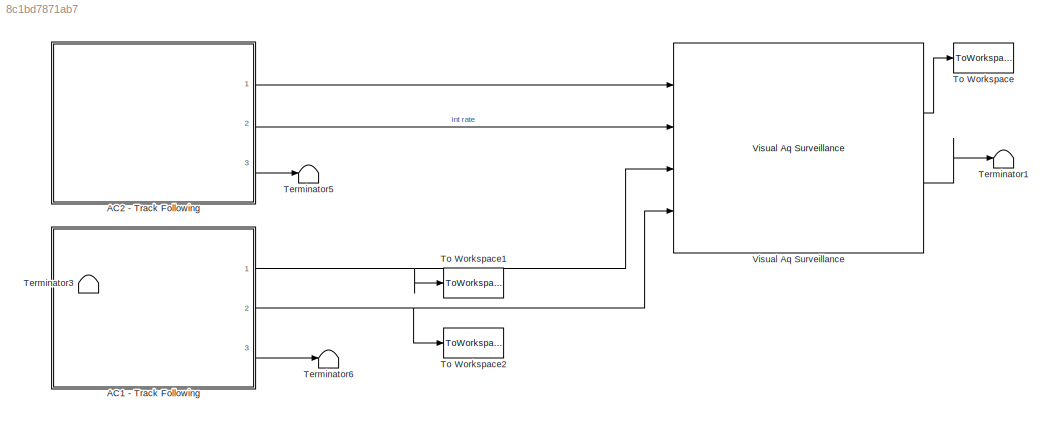
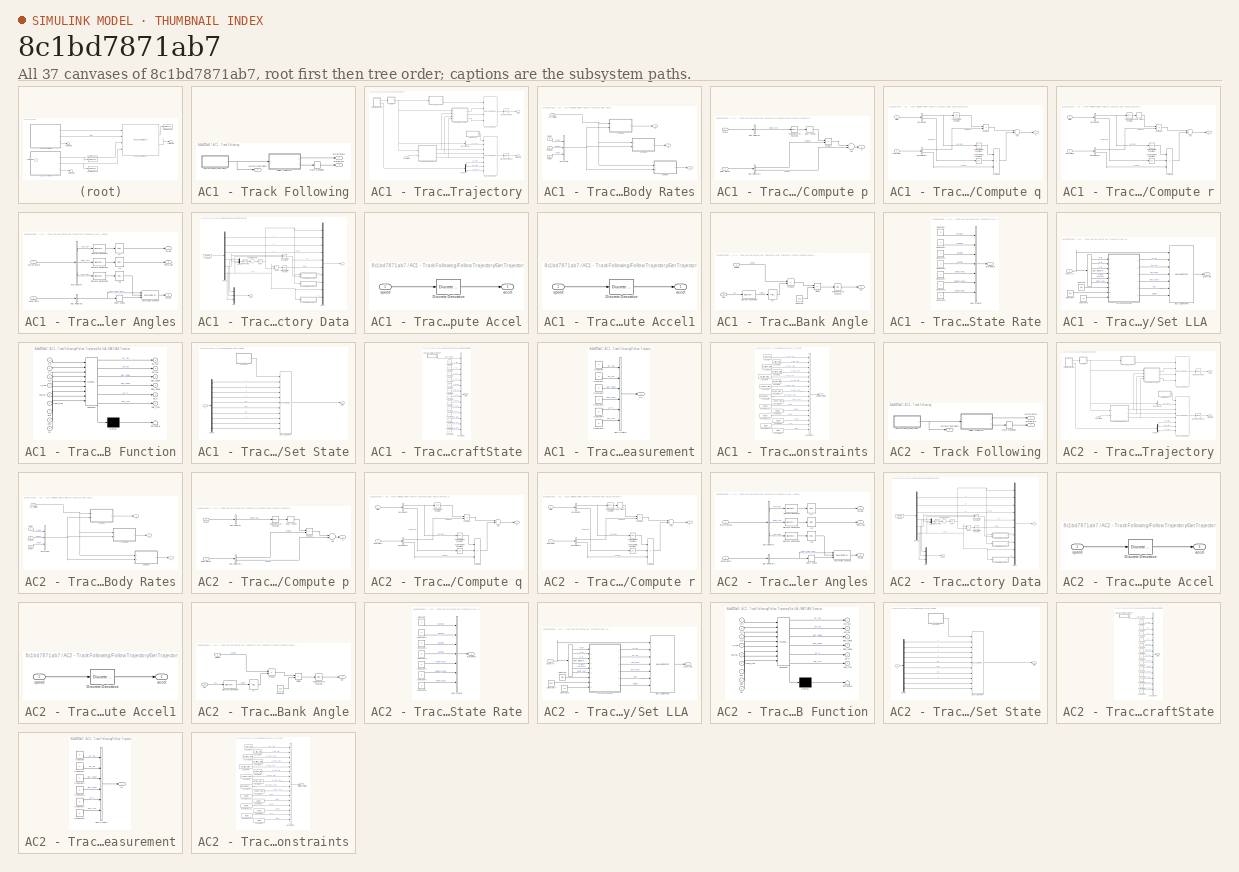
[diagram: thumbnail index - all 37 canvases of the model, root first then tree order]
MODEL slx_8c1bd7871ab7
KIND model
CONFIG AbsTol = auto
CONFIG EnableMultiTasking = off
CONFIG FixedStep = auto
CONFIG MaxStep = auto
CONFIG MinStep = auto
CONFIG RelTol = 1e-3
CONFIG SampleTimeConstraint = Unconstrained
CONFIG Solver = VariableStepAuto
CONFIG SolverName = VariableStepAuto
CONFIG StartTime = 0.0
CONFIG StopTime = 10.0
BLOCK [SubSystem] AC1 - Track Following
  Ports = [0, 3]
  RequestExecContextInheritance = off
BLOCK [Outport] AC1 - Track Following/AircraftConstraints
  IconDisplay = Port number
  OutDataTypeStr = Bus: AircraftConstraints
  Port = 3
  VectorParamsAs1DForOutWhenUnconnected = off
BLOCK [Outport] AC1 - Track Following/AircraftState
  IconDisplay = Port number
  OutDataTypeStr = Bus: AircraftState
  VectorParamsAs1DForOutWhenUnconnected = off
BLOCK [SubSystem] AC1 - Track Following/Follow Trajectory
  Ports = [1, 2]
  RequestExecContextInheritance = off
BLOCK [BusAssignment] AC1 - Track Following/Follow Trajectory/Bus Assignment
  AssignedSignals = p_radps,q_radps,r_radps
  Ports = [4, 1]
BLOCK [BusAssignment] AC1 - Track Following/Follow Trajectory/Bus Assignment1
  AssignedSignals = vdot_fpss,psidot_radps,thetadot_radps,phidot_radps,Ndot_ftps,Edot_ftps,hdot_ftps
  Ports = [8, 1]
BLOCK [BusSelector] AC1 - Track Following/Follow Trajectory/Bus Selector
  OutputAsBus = off
  OutputSignals = dv_ftps2
  Ports = [1, 1]
BLOCK [SubSystem] AC1 - Track Following/Follow Trajectory/Compute Body Rates
  Ports = [4, 3]
  RequestExecContextInheritance = off
BLOCK [Inport] AC1 - Track Following/Follow Trajectory/Compute Body Rates/AircraftState
  IconDisplay = Port number
BLOCK [BusCreator] AC1 - Track Following/Follow Trajectory/Compute Body Rates/Bus Creator
  DisplayOption = bar
  InheritFromInputs = on
  Inputs = 3
  Ports = [3, 1]
BLOCK [SubSystem] AC1 - Track Following/Follow Trajectory/Compute Body Rates/Compute p
  Ports = [2, 1]
  RequestExecContextInheritance = off
BLOCK [Sum] AC1 - Track Following/Follow Trajectory/Compute Body Rates/Compute p/Add
  InputSameDT = off
  OutDataTypeStr = Inherit: Inherit via internal rule
  Ports = [2, 1]
  SaturateOnIntegerOverflow = off
BLOCK [BusSelector] AC1 - Track Following/Follow Trajectory/Compute Body Rates/Compute p/Bus Selector
  OutputAsBus = off
  OutputSignals = theta_rad
  Ports = [1, 1]
BLOCK [BusSelector] AC1 - Track Following/Follow Trajectory/Compute Body Rates/Compute p/Bus Selector1
  OutputAsBus = off
  OutputSignals = psidot,phidot
  Ports = [1, 2]
BLOCK [Inport] AC1 - Track Following/Follow Trajectory/Compute Body Rates/Compute p/Euler Rates
  IconDisplay = Port number
  Port = 2
BLOCK [Product] AC1 - Track Following/Follow Trajectory/Compute Body Rates/Compute p/Product
  InputSameDT = off
  OutDataTypeStr = Inherit: Inherit via internal rule
  Ports = [2, 1]
  RndMeth = Floor
  SaturateOnIntegerOverflow = off
BLOCK [Inport] AC1 - Track Following/Follow Trajectory/Compute Body Rates/Compute p/State
  IconDisplay = Port number
BLOCK [Trigonometry] AC1 - Track Following/Follow Trajectory/Compute Body Rates/Compute p/Trigonometric Function
  Ports = [1, 1]
BLOCK [UnaryMinus] AC1 - Track Following/Follow Trajectory/Compute Body Rates/Compute p/Unary Minus
BLOCK [Outport] AC1 - Track Following/Follow Trajectory/Compute Body Rates/Compute p/p
  IconDisplay = Port number
  VectorParamsAs1DForOutWhenUnconnected = off
BLOCK [SubSystem] AC1 - Track Following/Follow Trajectory/Compute Body Rates/Compute q
  Ports = [2, 1]
  RequestExecContextInheritance = off
BLOCK [Sum] AC1 - Track Following/Follow Trajectory/Compute Body Rates/Compute q/Add
  InputSameDT = off
  OutDataTypeStr = Inherit: Inherit via internal rule
  Ports = [2, 1]
  SaturateOnIntegerOverflow = off
BLOCK [BusSelector] AC1 - Track Following/Follow Trajectory/Compute Body Rates/Compute q/Bus Selector
  OutputAsBus = off
  OutputSignals = phi_rad,theta_rad
  Ports = [1, 2]
BLOCK [BusSelector] AC1 - Track Following/Follow Trajectory/Compute Body Rates/Compute q/Bus Selector1
  OutputAsBus = off
  OutputSignals = thetadot,psidot
  Ports = [1, 2]
BLOCK [Inport] AC1 - Track Following/Follow Trajectory/Compute Body Rates/Compute q/Euler Rates
  IconDisplay = Port number
  Port = 2
BLOCK [Product] AC1 - Track Following/Follow Trajectory/Compute Body Rates/Compute q/Product
  InputSameDT = off
  OutDataTypeStr = Inherit: Inherit via internal rule
  Ports = [2, 1]
  RndMeth = Floor
  SaturateOnIntegerOverflow = off
BLOCK [Product] AC1 - Track Following/Follow Trajectory/Compute Body Rates/Compute q/Product1
  InputSameDT = off
  Inputs = 3
  OutDataTypeStr = Inherit: Inherit via internal rule
  Ports = [3, 1]
  RndMeth = Floor
  SaturateOnIntegerOverflow = off
BLOCK [Inport] AC1 - Track Following/Follow Trajectory/Compute Body Rates/Compute q/State
  IconDisplay = Port number
BLOCK [Trigonometry] AC1 - Track Following/Follow Trajectory/Compute Body Rates/Compute q/Trigonometric Function
  Operator = cos
  Ports = [1, 1]
BLOCK [Trigonometry] AC1 - Track Following/Follow Trajectory/Compute Body Rates/Compute q/Trigonometric Function1
  Operator = cos
  Ports = [1, 1]
BLOCK [Trigonometry] AC1 - Track Following/Follow Trajectory/Compute Body Rates/Compute q/Trigonometric Function2
  Ports = [1, 1]
BLOCK [Outport] AC1 - Track Following/Follow Trajectory/Compute Body Rates/Compute q/q
  IconDisplay = Port number
  VectorParamsAs1DForOutWhenUnconnected = off
BLOCK [SubSystem] AC1 - Track Following/Follow Trajectory/Compute Body Rates/Compute r
  Ports = [2, 1]
  RequestExecContextInheritance = off
BLOCK [Sum] AC1 - Track Following/Follow Trajectory/Compute Body Rates/Compute r/Add
  InputSameDT = off
  OutDataTypeStr = Inherit: Inherit via internal rule
  Ports = [2, 1]
  SaturateOnIntegerOverflow = off
BLOCK [BusSelector] AC1 - Track Following/Follow Trajectory/Compute Body Rates/Compute r/Bus Selector
  OutputAsBus = off
  OutputSignals = phi_rad,theta_rad
  Ports = [1, 2]
BLOCK [BusSelector] AC1 - Track Following/Follow Trajectory/Compute Body Rates/Compute r/Bus Selector1
  OutputAsBus = off
  OutputSignals = thetadot,psidot
  Ports = [1, 2]
BLOCK [Inport] AC1 - Track Following/Follow Trajectory/Compute Body Rates/Compute r/Euler Rates
  IconDisplay = Port number
  Port = 2
BLOCK [Product] AC1 - Track Following/Follow Trajectory/Compute Body Rates/Compute r/Product
  InputSameDT = off
  OutDataTypeStr = Inherit: Inherit via internal rule
  Ports = [2, 1]
  RndMeth = Floor
  SaturateOnIntegerOverflow = off
BLOCK [Product] AC1 - Track Following/Follow Trajectory/Compute Body Rates/Compute r/Product1
  InputSameDT = off
  Inputs = 3
  OutDataTypeStr = Inherit: Inherit via internal rule
  Ports = [3, 1]
  RndMeth = Floor
  SaturateOnIntegerOverflow = off
BLOCK [Inport] AC1 - Track Following/Follow Trajectory/Compute Body Rates/Compute r/State
  IconDisplay = Port number
BLOCK [Trigonometry] AC1 - Track Following/Follow Trajectory/Compute Body Rates/Compute r/Trigonometric Function
  Ports = [1, 1]
BLOCK [Trigonometry] AC1 - Track Following/Follow Trajectory/Compute Body Rates/Compute r/Trigonometric Function1
  Operator = cos
  Ports = [1, 1]
BLOCK [Trigonometry] AC1 - Track Following/Follow Trajectory/Compute Body Rates/Compute r/Trigonometric Function2
  Operator = cos
  Ports = [1, 1]
BLOCK [UnaryMinus] AC1 - Track Following/Follow Trajectory/Compute Body Rates/Compute r/Unary Minus
BLOCK [Outport] AC1 - Track Following/Follow Trajectory/Compute Body Rates/Compute r/r
  IconDisplay = Port number
  VectorParamsAs1DForOutWhenUnconnected = off
BLOCK [Inport] AC1 - Track Following/Follow Trajectory/Compute Body Rates/Phi Dot
  IconDisplay = Port number
  Port = 4
BLOCK [Inport] AC1 - Track Following/Follow Trajectory/Compute Body Rates/Psi Dot
  IconDisplay = Port number
  Port = 2
BLOCK [Inport] AC1 - Track Following/Follow Trajectory/Compute Body Rates/Theta Dot
  IconDisplay = Port number
  Port = 3
BLOCK [Outport] AC1 - Track Following/Follow Trajectory/Compute Body Rates/p
  IconDisplay = Port number
  VectorParamsAs1DForOutWhenUnconnected = off
BLOCK [Outport] AC1 - Track Following/Follow Trajectory/Compute Body Rates/q
  IconDisplay = Port number
  Port = 2
  VectorParamsAs1DForOutWhenUnconnected = off
BLOCK [Outport] AC1 - Track Following/Follow Trajectory/Compute Body Rates/r
  IconDisplay = Port number
  Port = 3
  VectorParamsAs1DForOutWhenUnconnected = off
BLOCK [SubSystem] AC1 - Track Following/Follow Trajectory/Compute Euler Angles
  Ports = [2, 3]
  RequestExecContextInheritance = off
BLOCK [Inport] AC1 - Track Following/Follow Trajectory/Compute Euler Angles/AircraftState
  IconDisplay = Port number
BLOCK [BusSelector] AC1 - Track Following/Follow Trajectory/Compute Euler Angles/Bus Selector
  OutputAsBus = off
  OutputSignals = psi_rad,theta_rad,phi_rad
  Ports = [1, 3]
BLOCK [BusSelector] AC1 - Track Following/Follow Trajectory/Compute Euler Angles/Bus Selector1
  OutputAsBus = off
  OutputSignals = dphi_radps_max
  Ports = [1, 1]
BLOCK [Inport] AC1 - Track Following/Follow Trajectory/Compute Euler Angles/Constraints
  IconDisplay = Port number
  Port = 2
BLOCK [Reference] AC1 - Track Following/Follow Trajectory/Compute Euler Angles/Discrete Derivative  REF=simulink/Discrete/Discrete Derivative
  Ports = [1, 1]
  SourceBlock = simulink/Discrete/Discrete Derivative
  SourceProductBaseCode = SL
  SourceProductName = Simulink
  SourceType = Discrete Derivative
BLOCK [Reference] AC1 - Track Following/Follow Trajectory/Compute Euler Angles/Discrete Derivative1  REF=simulink/Discrete/Discrete Derivative
  Ports = [1, 1]
  SourceBlock = simulink/Discrete/Discrete Derivative
  SourceProductBaseCode = SL
  SourceProductName = Simulink
  SourceType = Discrete Derivative
BLOCK [Reference] AC1 - Track Following/Follow Trajectory/Compute Euler Angles/Discrete Derivative2  REF=simulink/Discrete/Discrete Derivative
  Ports = [1, 1]
  SourceBlock = simulink/Discrete/Discrete Derivative
  SourceProductBaseCode = SL
  SourceProductName = Simulink
  SourceType = Discrete Derivative
BLOCK [InitialCondition] AC1 - Track Following/Follow Trajectory/Compute Euler Angles/IC
  Value = 0
BLOCK [InitialCondition] AC1 - Track Following/Follow Trajectory/Compute Euler Angles/IC1
  Value = 0
BLOCK [InitialCondition] AC1 - Track Following/Follow Trajectory/Compute Euler Angles/IC2
  Value = 0
BLOCK [Outport] AC1 - Track Following/Follow Trajectory/Compute Euler Angles/Phi Dot 
  IconDisplay = Port number
  Port = 3
  VectorParamsAs1DForOutWhenUnconnected = off
BLOCK [Outport] AC1 - Track Following/Follow Trajectory/Compute Euler Angles/Psi Dot
  IconDisplay = Port number
  VectorParamsAs1DForOutWhenUnconnected = off
BLOCK [Reference] AC1 - Track Following/Follow Trajectory/Compute Euler Angles/Saturation Dynamic  REF=simulink/Discontinuities/Saturation
Dynamic
  Ports = [3, 1]
  SourceBlock = simulink/Discontinuities/Saturation\nDynamic
  SourceProductBaseCode = SL
  SourceProductName = Simulink
  SourceType = Saturation Dynamic
BLOCK [Outport] AC1 - Track Following/Follow Trajectory/Compute Euler Angles/Theta Dot
  IconDisplay = Port number
  Port = 2
  VectorParamsAs1DForOutWhenUnconnected = off
BLOCK [UnaryMinus] AC1 - Track Following/Follow Trajectory/Compute Euler Angles/Unary Minus
BLOCK [Inport] AC1 - Track Following/Follow Trajectory/Constraints
  IconDisplay = Port number
BLOCK [Demux] AC1 - Track Following/Follow Trajectory/Demux
  DisplayOption = bar
  Outputs = 3
  Ports = [1, 3]
BLOCK [SubSystem] AC1 - Track Following/Follow Trajectory/Get Trajectory Data
  Ports = [0, 2]
  RequestExecContextInheritance = off
BLOCK [SubSystem] AC1 - Track Following/Follow Trajectory/Get Trajectory Data/Compute Accel
  Ports = [1, 1]
  RequestExecContextInheritance = off
BLOCK [Reference] AC1 - Track Following/Follow Trajectory/Get Trajectory Data/Compute Accel/Discrete Derivative  REF=simulink/Discrete/Discrete Derivative
  Ports = [1, 1]
  SourceBlock = simulink/Discrete/Discrete Derivative
  SourceProductBaseCode = SL
  SourceProductName = Simulink
  SourceType = Discrete Derivative
BLOCK [Outport] AC1 - Track Following/Follow Trajectory/Get Trajectory Data/Compute Accel/accel
  IconDisplay = Port number
  VectorParamsAs1DForOutWhenUnconnected = off
BLOCK [Inport] AC1 - Track Following/Follow Trajectory/Get Trajectory Data/Compute Accel/speed
  IconDisplay = Port number
BLOCK [SubSystem] AC1 - Track Following/Follow Trajectory/Get Trajectory Data/Compute Accel1
  Ports = [1, 1]
  RequestExecContextInheritance = off
BLOCK [Reference] AC1 - Track Following/Follow Trajectory/Get Trajectory Data/Compute Accel1/Discrete Derivative  REF=simulink/Discrete/Discrete Derivative
  Ports = [1, 1]
  SourceBlock = simulink/Discrete/Discrete Derivative
  SourceProductBaseCode = SL
  SourceProductName = Simulink
  SourceType = Discrete Derivative
BLOCK [Outport] AC1 - Track Following/Follow Trajectory/Get Trajectory Data/Compute Accel1/accel
  IconDisplay = Port number
  VectorParamsAs1DForOutWhenUnconnected = off
BLOCK [Inport] AC1 - Track Following/Follow Trajectory/Get Trajectory Data/Compute Accel1/speed
  IconDisplay = Port number
BLOCK [SubSystem] AC1 - Track Following/Follow Trajectory/Get Trajectory Data/Compute Bank Angle
  Ports = [2, 1]
  RequestExecContextInheritance = off
BLOCK [Constant] AC1 - Track Following/Follow Trajectory/Get Trajectory Data/Compute Bank Angle/Constant
  Value = 32.2
BLOCK [Reference] AC1 - Track Following/Follow Trajectory/Get Trajectory Data/Compute Bank Angle/Discrete Derivative  REF=simulink/Discrete/Discrete Derivative
  Ports = [1, 1]
  SourceBlock = simulink/Discrete/Discrete Derivative
  SourceProductBaseCode = SL
  SourceProductName = Simulink
  SourceType = Discrete Derivative
BLOCK [Product] AC1 - Track Following/Follow Trajectory/Get Trajectory Data/Compute Bank Angle/Divide
  InputSameDT = off
  Inputs = */
  OutDataTypeStr = Inherit: Inherit via internal rule
  Ports = [2, 1]
  RndMeth = Floor
  SaturateOnIntegerOverflow = off
BLOCK [InitialCondition] AC1 - Track Following/Follow Trajectory/Get Trajectory Data/Compute Bank Angle/IC
  Value = 0
BLOCK [Product] AC1 - Track Following/Follow Trajectory/Get Trajectory Data/Compute Bank Angle/Product
  InputSameDT = off
  OutDataTypeStr = Inherit: Inherit via internal rule
  Ports = [2, 1]
  RndMeth = Floor
  SaturateOnIntegerOverflow = off
BLOCK [Trigonometry] AC1 - Track Following/Follow Trajectory/Get Trajectory Data/Compute Bank Angle/Trigonometric Function
  Operator = atan
  Ports = [1, 1]
BLOCK [Outport] AC1 - Track Following/Follow Trajectory/Get Trajectory Data/Compute Bank Angle/phi
  IconDisplay = Port number
  VectorParamsAs1DForOutWhenUnconnected = off
BLOCK [Inport] AC1 - Track Following/Follow Trajectory/Get Trajectory Data/Compute Bank Angle/psi
  IconDisplay = Port number
  Port = 2
BLOCK [Inport] AC1 - Track Following/Follow Trajectory/Get Trajectory Data/Compute Bank Angle/speed
  IconDisplay = Port number
BLOCK [Demux] AC1 - Track Following/Follow Trajectory/Get Trajectory Data/Demux
  DisplayOption = bar
  Outputs = 6
  Ports = [1, 6]
BLOCK [Product] AC1 - Track Following/Follow Trajectory/Get Trajectory Data/Divide
  InputSameDT = off
  Inputs = */
  OutDataTypeStr = Inherit: Inherit via internal rule
  Ports = [2, 1]
  RndMeth = Floor
  SaturateOnIntegerOverflow = off
BLOCK [FromFile] AC1 - Track Following/Follow Trajectory/Get Trajectory Data/From File
  FileName = traj1.mat
  SampleTime = 0.1
BLOCK [Math] AC1 - Track Following/Follow Trajectory/Get Trajectory Data/Math Function
  Operator = square
  Ports = [1, 1]
BLOCK [Mux] AC1 - Track Following/Follow Trajectory/Get Trajectory Data/Mux
  DisplayOption = bar
  Inputs = 3
  Ports = [3, 1]
BLOCK [Mux] AC1 - Track Following/Follow Trajectory/Get Trajectory Data/Mux1
  DisplayOption = bar
  Inputs = 10
  Ports = [10, 1]
BLOCK [Mux] AC1 - Track Following/Follow Trajectory/Get Trajectory Data/Mux2
  DisplayOption = bar
  Inputs = 3
  Ports = [3, 1]
BLOCK [Sqrt] AC1 - Track Following/Follow Trajectory/Get Trajectory Data/Sqrt
BLOCK [Sum] AC1 - Track Following/Follow Trajectory/Get Trajectory Data/Sum of Elements
  InputSameDT = off
  Inputs = +
  OutDataTypeStr = Inherit: Inherit via internal rule
  Ports = [1, 1]
  SaturateOnIntegerOverflow = off
BLOCK [Trigonometry] AC1 - Track Following/Follow Trajectory/Get Trajectory Data/Trigonometric Function
  Operator = asin
  Ports = [1, 1]
BLOCK [Trigonometry] AC1 - Track Following/Follow Trajectory/Get Trajectory Data/Trigonometric Function1
  Operator = atan2
  Ports = [2, 1]
BLOCK [Outport] AC1 - Track Following/Follow Trajectory/Get Trajectory Data/x
  IconDisplay = Port number
  VectorParamsAs1DForOutWhenUnconnected = off
BLOCK [Outport] AC1 - Track Following/Follow Trajectory/Get Trajectory Data/xdot
  IconDisplay = Port number
  Port = 2
  VectorParamsAs1DForOutWhenUnconnected = off
BLOCK [SubSystem] AC1 - Track Following/Follow Trajectory/Null State Rate
  Ports = [0, 1]
  RequestExecContextInheritance = off
BLOCK [BusCreator] AC1 - Track Following/Follow Trajectory/Null State Rate/Bus Creator
  DisplayOption = bar
  InheritFromInputs = on
  Inputs = 'vdot_fpss','Ndot_ftps','Edot_ftps','hdot_ftps','psidot_radps','thetadot_radps','phidot_radps'
  OutDataTypeStr = Bus: AircraftStateRate
  Ports = [7, 1]
BLOCK [Constant] AC1 - Track Following/Follow Trajectory/Null State Rate/Constant
  Value = 0
BLOCK [Constant] AC1 - Track Following/Follow Trajectory/Null State Rate/Constant1
  Value = 0
BLOCK [Constant] AC1 - Track Following/Follow Trajectory/Null State Rate/Constant2
  Value = 0
BLOCK [Constant] AC1 - Track Following/Follow Trajectory/Null State Rate/Constant3
  Value = 0
BLOCK [Constant] AC1 - Track Following/Follow Trajectory/Null State Rate/Constant4
  Value = 0
BLOCK [Constant] AC1 - Track Following/Follow Trajectory/Null State Rate/Constant5
  Value = 0
BLOCK [Constant] AC1 - Track Following/Follow Trajectory/Null State Rate/Constant6
  Value = 0
BLOCK [Outport] AC1 - Track Following/Follow Trajectory/Null State Rate/StateRate
  IconDisplay = Port number
  OutDataTypeStr = Bus: AircraftStateRate
  VectorParamsAs1DForOutWhenUnconnected = off
BLOCK [SubSystem] AC1 - Track Following/Follow Trajectory/Set LLA 
  Ports = [1, 1]
  RequestExecContextInheritance = off
BLOCK [BusAssignment] AC1 - Track Following/Follow Trajectory/Set LLA /Bus Assignment
  AssignedSignals = latLonAltState.lat_rad,latLonAltState.lon_rad,latLonAltState.dlat_radps,latLonAltState.dlon_radps,latLonAltState.alt_ft,latLonAltState.dalt_ftps
  Ports = [7, 1]
BLOCK [BusSelector] AC1 - Track Following/Follow Trajectory/Set LLA /Bus Selector
  OutputAsBus = off
  OutputSignals = e_ft,n_ft,h_ft,v_ftps,psi_rad,theta_rad
  Ports = [1, 6]
BLOCK [Constant] AC1 - Track Following/Follow Trajectory/Set LLA /Constant
  Value = lat0
BLOCK [Constant] AC1 - Track Following/Follow Trajectory/Set LLA /Constant7
  Value = lon0
BLOCK [Constant] AC1 - Track Following/Follow Trajectory/Set LLA /Constant8
  Value = h0
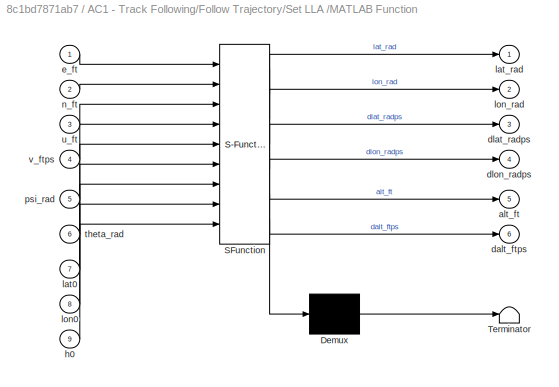
BLOCK [SubSystem] AC1 - Track Following/Follow Trajectory/Set LLA /MATLAB Function
  ErrorFcn = Stateflow.Translate.translate
  PermitHierarchicalResolution = ExplicitOnly
  Ports = [9, 6]
  RequestExecContextInheritance = off
  SFBlockType = MATLAB Function
  TreatAsAtomicUnit = on
BLOCK [Demux] AC1 - Track Following/Follow Trajectory/Set LLA /MATLAB Function/ Demux 
  Outputs = 1
  Ports = [1, 1]
BLOCK [S-Function] AC1 - Track Following/Follow Trajectory/Set LLA /MATLAB Function/ SFunction 
  EnableBusSupport = off
  FunctionName = sf_sfun
  PortCounts = [9 7]
  Ports = [9, 7]
  SFcnIsStateOwnerBlock = off
  SFunctionDeploymentMode = off
  Tag = Stateflow S-Function 3
BLOCK [Terminator] AC1 - Track Following/Follow Trajectory/Set LLA /MATLAB Function/ Terminator 
BLOCK [Outport] AC1 - Track Following/Follow Trajectory/Set LLA /MATLAB Function/alt_ft
  IconDisplay = Port number
  Port = 5
  VectorParamsAs1DForOutWhenUnconnected = off
BLOCK [Outport] AC1 - Track Following/Follow Trajectory/Set LLA /MATLAB Function/dalt_ftps
  IconDisplay = Port number
  Port = 6
  VectorParamsAs1DForOutWhenUnconnected = off
BLOCK [Outport] AC1 - Track Following/Follow Trajectory/Set LLA /MATLAB Function/dlat_radps
  IconDisplay = Port number
  Port = 3
  VectorParamsAs1DForOutWhenUnconnected = off
BLOCK [Outport] AC1 - Track Following/Follow Trajectory/Set LLA /MATLAB Function/dlon_radps
  IconDisplay = Port number
  Port = 4
  VectorParamsAs1DForOutWhenUnconnected = off
BLOCK [Inport] AC1 - Track Following/Follow Trajectory/Set LLA /MATLAB Function/e_ft
  IconDisplay = Port number
BLOCK [Inport] AC1 - Track Following/Follow Trajectory/Set LLA /MATLAB Function/h0
  IconDisplay = Port number
  Port = 9
BLOCK [Inport] AC1 - Track Following/Follow Trajectory/Set LLA /MATLAB Function/lat0
  IconDisplay = Port number
  Port = 7
BLOCK [Outport] AC1 - Track Following/Follow Trajectory/Set LLA /MATLAB Function/lat_rad
  IconDisplay = Port number
  VectorParamsAs1DForOutWhenUnconnected = off
BLOCK [Inport] AC1 - Track Following/Follow Trajectory/Set LLA /MATLAB Function/lon0
  IconDisplay = Port number
  Port = 8
BLOCK [Outport] AC1 - Track Following/Follow Trajectory/Set LLA /MATLAB Function/lon_rad
  IconDisplay = Port number
  Port = 2
  VectorParamsAs1DForOutWhenUnconnected = off
BLOCK [Inport] AC1 - Track Following/Follow Trajectory/Set LLA /MATLAB Function/n_ft
  IconDisplay = Port number
  Port = 2
BLOCK [Inport] AC1 - Track Following/Follow Trajectory/Set LLA /MATLAB Function/psi_rad
  IconDisplay = Port number
  Port = 5
BLOCK [Inport] AC1 - Track Following/Follow Trajectory/Set LLA /MATLAB Function/theta_rad
  IconDisplay = Port number
  Port = 6
BLOCK [Inport] AC1 - Track Following/Follow Trajectory/Set LLA /MATLAB Function/u_ft
  IconDisplay = Port number
  Port = 3
BLOCK [Inport] AC1 - Track Following/Follow Trajectory/Set LLA /MATLAB Function/v_ftps
  IconDisplay = Port number
  Port = 4
BLOCK [Inport] AC1 - Track Following/Follow Trajectory/Set LLA /State In
  IconDisplay = Port number
BLOCK [Outport] AC1 - Track Following/Follow Trajectory/Set LLA /State Out
  IconDisplay = Port number
  VectorParamsAs1DForOutWhenUnconnected = off
BLOCK [SubSystem] AC1 - Track Following/Follow Trajectory/Set State
  Ports = [1, 1]
  RequestExecContextInheritance = off
BLOCK [BusAssignment] AC1 - Track Following/Follow Trajectory/Set State/Bus Assignment
  AssignedSignals = v_ftps,n_ft,e_ft,h_ft,psi_rad,theta_rad,phi_rad,dv_ftps2,dh_ftps,ddh_ftps2
  Ports = [11, 1]
BLOCK [Demux] AC1 - Track Following/Follow Trajectory/Set State/Demux
  DisplayOption = bar
  Outputs = 10
  Ports = [1, 10]
BLOCK [SubSystem] AC1 - Track Following/Follow Trajectory/Set State/Null AircraftState
  Ports = [0, 1]
  RequestExecContextInheritance = off
BLOCK [BusCreator] AC1 - Track Following/Follow Trajectory/Set State/Null AircraftState/Bus Creator
  DisplayOption = bar
  InheritFromInputs = on
  Inputs = 'latLonAltState','v_ftps','n_ft','e_ft','h_ft','psi_rad','theta_rad','phi_rad','p_radps','q_radps','r_radps','dv_ftps2','dh_ftps','ddh_ftps2'
  OutDataTypeStr = Bus: AircraftState
  Ports = [14, 1]
BLOCK [Constant] AC1 - Track Following/Follow Trajectory/Set State/Null AircraftState/Constant
  Value = 0
BLOCK [Constant] AC1 - Track Following/Follow Trajectory/Set State/Null AircraftState/Constant1
  Value = 0
BLOCK [Constant] AC1 - Track Following/Follow Trajectory/Set State/Null AircraftState/Constant10
  Value = 0
BLOCK [Constant] AC1 - Track Following/Follow Trajectory/Set State/Null AircraftState/Constant11
  Value = 0
BLOCK [Constant] AC1 - Track Following/Follow Trajectory/Set State/Null AircraftState/Constant12
  Value = 0
BLOCK [Constant] AC1 - Track Following/Follow Trajectory/Set State/Null AircraftState/Constant2
  Value = 0
BLOCK [Constant] AC1 - Track Following/Follow Trajectory/Set State/Null AircraftState/Constant3
  Value = 0
BLOCK [Constant] AC1 - Track Following/Follow Trajectory/Set State/Null AircraftState/Constant4
  Value = 0
BLOCK [Constant] AC1 - Track Following/Follow Trajectory/Set State/Null AircraftState/Constant5
  Value = 0
BLOCK [Constant] AC1 - Track Following/Follow Trajectory/Set State/Null AircraftState/Constant6
  Value = 0
BLOCK [Constant] AC1 - Track Following/Follow Trajectory/Set State/Null AircraftState/Constant7
  Value = 0
BLOCK [Constant] AC1 - Track Following/Follow Trajectory/Set State/Null AircraftState/Constant8
  Value = 0
BLOCK [Constant] AC1 - Track Following/Follow Trajectory/Set State/Null AircraftState/Constant9
  Value = 0
BLOCK [SubSystem] AC1 - Track Following/Follow Trajectory/Set State/Null AircraftState/Null LatLonAltMeasurement
  Ports = [0, 1]
  RequestExecContextInheritance = off
BLOCK [BusCreator] AC1 - Track Following/Follow Trajectory/Set State/Null AircraftState/Null LatLonAltMeasurement/Bus Creator
  DisplayOption = bar
  InheritFromInputs = on
  Inputs = 'lat_rad','lon_rad','dlat_radps','dlon_radps','alt_ft','dalt_ftps'
  OutDataTypeStr = Bus: LatLonAltMeasurement
  Ports = [6, 1]
BLOCK [Constant] AC1 - Track Following/Follow Trajectory/Set State/Null AircraftState/Null LatLonAltMeasurement/Constant
  Value = 0
BLOCK [Constant] AC1 - Track Following/Follow Trajectory/Set State/Null AircraftState/Null LatLonAltMeasurement/Constant1
  Value = 0
BLOCK [Constant] AC1 - Track Following/Follow Trajectory/Set State/Null AircraftState/Null LatLonAltMeasurement/Constant2
  Value = 0
BLOCK [Constant] AC1 - Track Following/Follow Trajectory/Set State/Null AircraftState/Null LatLonAltMeasurement/Constant3
  Value = 0
BLOCK [Constant] AC1 - Track Following/Follow Trajectory/Set State/Null AircraftState/Null LatLonAltMeasurement/Constant4
  Value = 0
BLOCK [Constant] AC1 - Track Following/Follow Trajectory/Set State/Null AircraftState/Null LatLonAltMeasurement/Constant5
  Value = 0
BLOCK [Outport] AC1 - Track Following/Follow Trajectory/Set State/Null AircraftState/Null LatLonAltMeasurement/LLA
  IconDisplay = Port number
  VectorParamsAs1DForOutWhenUnconnected = off
BLOCK [Outport] AC1 - Track Following/Follow Trajectory/Set State/Null AircraftState/State
  IconDisplay = Port number
  VectorParamsAs1DForOutWhenUnconnected = off
BLOCK [Outport] AC1 - Track Following/Follow Trajectory/Set State/State
  IconDisplay = Port number
  VectorParamsAs1DForOutWhenUnconnected = off
BLOCK [Inport] AC1 - Track Following/Follow Trajectory/Set State/x
  IconDisplay = Port number
BLOCK [SignalConversion] AC1 - Track Following/Follow Trajectory/Signal Conversion
  OverrideOpt = off
BLOCK [SignalConversion] AC1 - Track Following/Follow Trajectory/Signal Conversion1
  OverrideOpt = off
BLOCK [Outport] AC1 - Track Following/Follow Trajectory/State
  IconDisplay = Port number
  VectorParamsAs1DForOutWhenUnconnected = off
BLOCK [Outport] AC1 - Track Following/Follow Trajectory/State Rate
  IconDisplay = Port number
  Port = 2
  VectorParamsAs1DForOutWhenUnconnected = off
BLOCK [SubSystem] AC1 - Track Following/Performance_constraints
  Ports = [0, 1]
  RequestExecContextInheritance = off
BLOCK [Outport] AC1 - Track Following/Performance_constraints/AircraftConstraints
  IconDisplay = Port number
  OutDataTypeStr = Bus: AircraftConstraints
  VectorParamsAs1DForOutWhenUnconnected = off
BLOCK [BusCreator] AC1 - Track Following/Performance_constraints/Bus Creator
  DisplayOption = bar
  InheritFromInputs = on
  Inputs = 16
  Ports = [16, 1]
BLOCK [Constant] AC1 - Track Following/Performance_constraints/Constant
  Value = v_ftps_max
BLOCK [Constant] AC1 - Track Following/Performance_constraints/Constant1
  Value = v_ftps_min
BLOCK [Constant] AC1 - Track Following/Performance_constraints/Constant10 2x1
  Value = pNUM
BLOCK [Constant] AC1 - Track Following/Performance_constraints/Constant11
  Value = pDEN
BLOCK [Constant] AC1 - Track Following/Performance_constraints/Constant12 2x1
  Value = hNUM
BLOCK [Constant] AC1 - Track Following/Performance_constraints/Constant13
  Value = hDEN
BLOCK [Constant] AC1 - Track Following/Performance_constraints/Constant14 2x1
  Value = rNUM
BLOCK [Constant] AC1 - Track Following/Performance_constraints/Constant15
  Value = rDEN
BLOCK [Constant] AC1 - Track Following/Performance_constraints/Constant2
  Value = dv_ftpss_max
BLOCK [Constant] AC1 - Track Following/Performance_constraints/Constant3
  Value = dv_ftpss_min
BLOCK [Constant] AC1 - Track Following/Performance_constraints/Constant4
  Value = dh_ftps_max
BLOCK [Constant] AC1 - Track Following/Performance_constraints/Constant5
  Value = dh_ftps_min
BLOCK [Constant] AC1 - Track Following/Performance_constraints/Constant6
  Value = q_radps_max
BLOCK [Constant] AC1 - Track Following/Performance_constraints/Constant7
  Value = phi_rad_max
BLOCK [Constant] AC1 - Track Following/Performance_constraints/Constant8
  Value = dphi_radps_max
BLOCK [Constant] AC1 - Track Following/Performance_constraints/Constant9
  Value = r_radps_max
BLOCK [RateTransition] AC1 - Track Following/Rate Transition
  OutPortSampleTime = 0.1
BLOCK [Outport] AC1 - Track Following/StateRate
  IconDisplay = Port number
  OutDataTypeStr = Bus: AircraftStateRate
  Port = 2
  VectorParamsAs1DForOutWhenUnconnected = off
BLOCK [SubSystem] AC2 - Track Following
  Ports = [0, 3]
  RequestExecContextInheritance = off
BLOCK [Outport] AC2 - Track Following/AircraftConstraints
  IconDisplay = Port number
  OutDataTypeStr = Bus: AircraftConstraints
  Port = 3
  VectorParamsAs1DForOutWhenUnconnected = off
BLOCK [Outport] AC2 - Track Following/AircraftState
  IconDisplay = Port number
  OutDataTypeStr = Bus: AircraftState
  VectorParamsAs1DForOutWhenUnconnected = off
BLOCK [SubSystem] AC2 - Track Following/Follow Trajectory
  Ports = [1, 2]
  RequestExecContextInheritance = off
BLOCK [BusAssignment] AC2 - Track Following/Follow Trajectory/Bus Assignment
  AssignedSignals = p_radps,q_radps,r_radps
  Ports = [4, 1]
BLOCK [BusAssignment] AC2 - Track Following/Follow Trajectory/Bus Assignment1
  AssignedSignals = vdot_fpss,psidot_radps,thetadot_radps,phidot_radps,Ndot_ftps,Edot_ftps,hdot_ftps
  Ports = [8, 1]
BLOCK [BusSelector] AC2 - Track Following/Follow Trajectory/Bus Selector
  OutputAsBus = off
  OutputSignals = dv_ftps2
  Ports = [1, 1]
BLOCK [SubSystem] AC2 - Track Following/Follow Trajectory/Compute Body Rates
  Ports = [4, 3]
  RequestExecContextInheritance = off
BLOCK [Inport] AC2 - Track Following/Follow Trajectory/Compute Body Rates/AircraftState
  IconDisplay = Port number
BLOCK [BusCreator] AC2 - Track Following/Follow Trajectory/Compute Body Rates/Bus Creator
  DisplayOption = bar
  InheritFromInputs = on
  Inputs = 3
  Ports = [3, 1]
BLOCK [SubSystem] AC2 - Track Following/Follow Trajectory/Compute Body Rates/Compute p
  Ports = [2, 1]
  RequestExecContextInheritance = off
BLOCK [Sum] AC2 - Track Following/Follow Trajectory/Compute Body Rates/Compute p/Add
  InputSameDT = off
  OutDataTypeStr = Inherit: Inherit via internal rule
  Ports = [2, 1]
  SaturateOnIntegerOverflow = off
BLOCK [BusSelector] AC2 - Track Following/Follow Trajectory/Compute Body Rates/Compute p/Bus Selector
  OutputAsBus = off
  OutputSignals = theta_rad
  Ports = [1, 1]
BLOCK [BusSelector] AC2 - Track Following/Follow Trajectory/Compute Body Rates/Compute p/Bus Selector1
  OutputAsBus = off
  OutputSignals = psidot,phidot
  Ports = [1, 2]
BLOCK [Inport] AC2 - Track Following/Follow Trajectory/Compute Body Rates/Compute p/Euler Rates
  IconDisplay = Port number
  Port = 2
BLOCK [Product] AC2 - Track Following/Follow Trajectory/Compute Body Rates/Compute p/Product
  InputSameDT = off
  OutDataTypeStr = Inherit: Inherit via internal rule
  Ports = [2, 1]
  RndMeth = Floor
  SaturateOnIntegerOverflow = off
BLOCK [Inport] AC2 - Track Following/Follow Trajectory/Compute Body Rates/Compute p/State
  IconDisplay = Port number
BLOCK [Trigonometry] AC2 - Track Following/Follow Trajectory/Compute Body Rates/Compute p/Trigonometric Function
  Ports = [1, 1]
BLOCK [UnaryMinus] AC2 - Track Following/Follow Trajectory/Compute Body Rates/Compute p/Unary Minus
BLOCK [Outport] AC2 - Track Following/Follow Trajectory/Compute Body Rates/Compute p/p
  IconDisplay = Port number
  VectorParamsAs1DForOutWhenUnconnected = off
BLOCK [SubSystem] AC2 - Track Following/Follow Trajectory/Compute Body Rates/Compute q
  Ports = [2, 1]
  RequestExecContextInheritance = off
BLOCK [Sum] AC2 - Track Following/Follow Trajectory/Compute Body Rates/Compute q/Add
  InputSameDT = off
  OutDataTypeStr = Inherit: Inherit via internal rule
  Ports = [2, 1]
  SaturateOnIntegerOverflow = off
BLOCK [BusSelector] AC2 - Track Following/Follow Trajectory/Compute Body Rates/Compute q/Bus Selector
  OutputAsBus = off
  OutputSignals = phi_rad,theta_rad
  Ports = [1, 2]
BLOCK [BusSelector] AC2 - Track Following/Follow Trajectory/Compute Body Rates/Compute q/Bus Selector1
  OutputAsBus = off
  OutputSignals = thetadot,psidot
  Ports = [1, 2]
BLOCK [Inport] AC2 - Track Following/Follow Trajectory/Compute Body Rates/Compute q/Euler Rates
  IconDisplay = Port number
  Port = 2
BLOCK [Product] AC2 - Track Following/Follow Trajectory/Compute Body Rates/Compute q/Product
  InputSameDT = off
  OutDataTypeStr = Inherit: Inherit via internal rule
  Ports = [2, 1]
  RndMeth = Floor
  SaturateOnIntegerOverflow = off
BLOCK [Product] AC2 - Track Following/Follow Trajectory/Compute Body Rates/Compute q/Product1
  InputSameDT = off
  Inputs = 3
  OutDataTypeStr = Inherit: Inherit via internal rule
  Ports = [3, 1]
  RndMeth = Floor
  SaturateOnIntegerOverflow = off
BLOCK [Inport] AC2 - Track Following/Follow Trajectory/Compute Body Rates/Compute q/State
  IconDisplay = Port number
BLOCK [Trigonometry] AC2 - Track Following/Follow Trajectory/Compute Body Rates/Compute q/Trigonometric Function
  Operator = cos
  Ports = [1, 1]
BLOCK [Trigonometry] AC2 - Track Following/Follow Trajectory/Compute Body Rates/Compute q/Trigonometric Function1
  Operator = cos
  Ports = [1, 1]
BLOCK [Trigonometry] AC2 - Track Following/Follow Trajectory/Compute Body Rates/Compute q/Trigonometric Function2
  Ports = [1, 1]
BLOCK [Outport] AC2 - Track Following/Follow Trajectory/Compute Body Rates/Compute q/q
  IconDisplay = Port number
  VectorParamsAs1DForOutWhenUnconnected = off
BLOCK [SubSystem] AC2 - Track Following/Follow Trajectory/Compute Body Rates/Compute r
  Ports = [2, 1]
  RequestExecContextInheritance = off
BLOCK [Sum] AC2 - Track Following/Follow Trajectory/Compute Body Rates/Compute r/Add
  InputSameDT = off
  OutDataTypeStr = Inherit: Inherit via internal rule
  Ports = [2, 1]
  SaturateOnIntegerOverflow = off
BLOCK [BusSelector] AC2 - Track Following/Follow Trajectory/Compute Body Rates/Compute r/Bus Selector
  OutputAsBus = off
  OutputSignals = phi_rad,theta_rad
  Ports = [1, 2]
BLOCK [BusSelector] AC2 - Track Following/Follow Trajectory/Compute Body Rates/Compute r/Bus Selector1
  OutputAsBus = off
  OutputSignals = thetadot,psidot
  Ports = [1, 2]
BLOCK [Inport] AC2 - Track Following/Follow Trajectory/Compute Body Rates/Compute r/Euler Rates
  IconDisplay = Port number
  Port = 2
BLOCK [Product] AC2 - Track Following/Follow Trajectory/Compute Body Rates/Compute r/Product
  InputSameDT = off
  OutDataTypeStr = Inherit: Inherit via internal rule
  Ports = [2, 1]
  RndMeth = Floor
  SaturateOnIntegerOverflow = off
BLOCK [Product] AC2 - Track Following/Follow Trajectory/Compute Body Rates/Compute r/Product1
  InputSameDT = off
  Inputs = 3
  OutDataTypeStr = Inherit: Inherit via internal rule
  Ports = [3, 1]
  RndMeth = Floor
  SaturateOnIntegerOverflow = off
BLOCK [Inport] AC2 - Track Following/Follow Trajectory/Compute Body Rates/Compute r/State
  IconDisplay = Port number
BLOCK [Trigonometry] AC2 - Track Following/Follow Trajectory/Compute Body Rates/Compute r/Trigonometric Function
  Ports = [1, 1]
BLOCK [Trigonometry] AC2 - Track Following/Follow Trajectory/Compute Body Rates/Compute r/Trigonometric Function1
  Operator = cos
  Ports = [1, 1]
BLOCK [Trigonometry] AC2 - Track Following/Follow Trajectory/Compute Body Rates/Compute r/Trigonometric Function2
  Operator = cos
  Ports = [1, 1]
BLOCK [UnaryMinus] AC2 - Track Following/Follow Trajectory/Compute Body Rates/Compute r/Unary Minus
BLOCK [Outport] AC2 - Track Following/Follow Trajectory/Compute Body Rates/Compute r/r
  IconDisplay = Port number
  VectorParamsAs1DForOutWhenUnconnected = off
BLOCK [Inport] AC2 - Track Following/Follow Trajectory/Compute Body Rates/Phi Dot
  IconDisplay = Port number
  Port = 4
BLOCK [Inport] AC2 - Track Following/Follow Trajectory/Compute Body Rates/Psi Dot
  IconDisplay = Port number
  Port = 2
BLOCK [Inport] AC2 - Track Following/Follow Trajectory/Compute Body Rates/Theta Dot
  IconDisplay = Port number
  Port = 3
BLOCK [Outport] AC2 - Track Following/Follow Trajectory/Compute Body Rates/p
  IconDisplay = Port number
  VectorParamsAs1DForOutWhenUnconnected = off
BLOCK [Outport] AC2 - Track Following/Follow Trajectory/Compute Body Rates/q
  IconDisplay = Port number
  Port = 2
  VectorParamsAs1DForOutWhenUnconnected = off
BLOCK [Outport] AC2 - Track Following/Follow Trajectory/Compute Body Rates/r
  IconDisplay = Port number
  Port = 3
  VectorParamsAs1DForOutWhenUnconnected = off
BLOCK [SubSystem] AC2 - Track Following/Follow Trajectory/Compute Euler Angles
  Ports = [2, 3]
  RequestExecContextInheritance = off
BLOCK [Inport] AC2 - Track Following/Follow Trajectory/Compute Euler Angles/AircraftState
  IconDisplay = Port number
BLOCK [BusSelector] AC2 - Track Following/Follow Trajectory/Compute Euler Angles/Bus Selector
  OutputAsBus = off
  OutputSignals = psi_rad,theta_rad,phi_rad
  Ports = [1, 3]
BLOCK [BusSelector] AC2 - Track Following/Follow Trajectory/Compute Euler Angles/Bus Selector1
  OutputAsBus = off
  OutputSignals = dphi_radps_max
  Ports = [1, 1]
BLOCK [Inport] AC2 - Track Following/Follow Trajectory/Compute Euler Angles/Constraints
  IconDisplay = Port number
  Port = 2
BLOCK [Reference] AC2 - Track Following/Follow Trajectory/Compute Euler Angles/Discrete Derivative  REF=simulink/Discrete/Discrete Derivative
  Ports = [1, 1]
  SourceBlock = simulink/Discrete/Discrete Derivative
  SourceProductBaseCode = SL
  SourceProductName = Simulink
  SourceType = Discrete Derivative
BLOCK [Reference] AC2 - Track Following/Follow Trajectory/Compute Euler Angles/Discrete Derivative1  REF=simulink/Discrete/Discrete Derivative
  Ports = [1, 1]
  SourceBlock = simulink/Discrete/Discrete Derivative
  SourceProductBaseCode = SL
  SourceProductName = Simulink
  SourceType = Discrete Derivative
BLOCK [Reference] AC2 - Track Following/Follow Trajectory/Compute Euler Angles/Discrete Derivative2  REF=simulink/Discrete/Discrete Derivative
  Ports = [1, 1]
  SourceBlock = simulink/Discrete/Discrete Derivative
  SourceProductBaseCode = SL
  SourceProductName = Simulink
  SourceType = Discrete Derivative
BLOCK [InitialCondition] AC2 - Track Following/Follow Trajectory/Compute Euler Angles/IC
  Value = 0
BLOCK [InitialCondition] AC2 - Track Following/Follow Trajectory/Compute Euler Angles/IC1
  Value = 0
BLOCK [InitialCondition] AC2 - Track Following/Follow Trajectory/Compute Euler Angles/IC2
  Value = 0
BLOCK [Outport] AC2 - Track Following/Follow Trajectory/Compute Euler Angles/Phi Dot 
  IconDisplay = Port number
  Port = 3
  VectorParamsAs1DForOutWhenUnconnected = off
BLOCK [Outport] AC2 - Track Following/Follow Trajectory/Compute Euler Angles/Psi Dot
  IconDisplay = Port number
  VectorParamsAs1DForOutWhenUnconnected = off
BLOCK [Reference] AC2 - Track Following/Follow Trajectory/Compute Euler Angles/Saturation Dynamic  REF=simulink/Discontinuities/Saturation
Dynamic
  Ports = [3, 1]
  SourceBlock = simulink/Discontinuities/Saturation\nDynamic
  SourceProductBaseCode = SL
  SourceProductName = Simulink
  SourceType = Saturation Dynamic
BLOCK [Outport] AC2 - Track Following/Follow Trajectory/Compute Euler Angles/Theta Dot
  IconDisplay = Port number
  Port = 2
  VectorParamsAs1DForOutWhenUnconnected = off
BLOCK [UnaryMinus] AC2 - Track Following/Follow Trajectory/Compute Euler Angles/Unary Minus
BLOCK [Inport] AC2 - Track Following/Follow Trajectory/Constraints
  IconDisplay = Port number
BLOCK [Demux] AC2 - Track Following/Follow Trajectory/Demux
  DisplayOption = bar
  Outputs = 3
  Ports = [1, 3]
BLOCK [SubSystem] AC2 - Track Following/Follow Trajectory/Get Trajectory Data
  Ports = [0, 2]
  RequestExecContextInheritance = off
BLOCK [SubSystem] AC2 - Track Following/Follow Trajectory/Get Trajectory Data/Compute Accel
  Ports = [1, 1]
  RequestExecContextInheritance = off
BLOCK [Reference] AC2 - Track Following/Follow Trajectory/Get Trajectory Data/Compute Accel/Discrete Derivative  REF=simulink/Discrete/Discrete Derivative
  Ports = [1, 1]
  SourceBlock = simulink/Discrete/Discrete Derivative
  SourceProductBaseCode = SL
  SourceProductName = Simulink
  SourceType = Discrete Derivative
BLOCK [Outport] AC2 - Track Following/Follow Trajectory/Get Trajectory Data/Compute Accel/accel
  IconDisplay = Port number
  VectorParamsAs1DForOutWhenUnconnected = off
BLOCK [Inport] AC2 - Track Following/Follow Trajectory/Get Trajectory Data/Compute Accel/speed
  IconDisplay = Port number
BLOCK [SubSystem] AC2 - Track Following/Follow Trajectory/Get Trajectory Data/Compute Accel1
  Ports = [1, 1]
  RequestExecContextInheritance = off
BLOCK [Reference] AC2 - Track Following/Follow Trajectory/Get Trajectory Data/Compute Accel1/Discrete Derivative  REF=simulink/Discrete/Discrete Derivative
  Ports = [1, 1]
  SourceBlock = simulink/Discrete/Discrete Derivative
  SourceProductBaseCode = SL
  SourceProductName = Simulink
  SourceType = Discrete Derivative
BLOCK [Outport] AC2 - Track Following/Follow Trajectory/Get Trajectory Data/Compute Accel1/accel
  IconDisplay = Port number
  VectorParamsAs1DForOutWhenUnconnected = off
BLOCK [Inport] AC2 - Track Following/Follow Trajectory/Get Trajectory Data/Compute Accel1/speed
  IconDisplay = Port number
BLOCK [SubSystem] AC2 - Track Following/Follow Trajectory/Get Trajectory Data/Compute Bank Angle
  Ports = [2, 1]
  RequestExecContextInheritance = off
BLOCK [Constant] AC2 - Track Following/Follow Trajectory/Get Trajectory Data/Compute Bank Angle/Constant
  Value = 32.2
BLOCK [Reference] AC2 - Track Following/Follow Trajectory/Get Trajectory Data/Compute Bank Angle/Discrete Derivative  REF=simulink/Discrete/Discrete Derivative
  Ports = [1, 1]
  SourceBlock = simulink/Discrete/Discrete Derivative
  SourceProductBaseCode = SL
  SourceProductName = Simulink
  SourceType = Discrete Derivative
BLOCK [Product] AC2 - Track Following/Follow Trajectory/Get Trajectory Data/Compute Bank Angle/Divide
  InputSameDT = off
  Inputs = */
  OutDataTypeStr = Inherit: Inherit via internal rule
  Ports = [2, 1]
  RndMeth = Floor
  SaturateOnIntegerOverflow = off
BLOCK [InitialCondition] AC2 - Track Following/Follow Trajectory/Get Trajectory Data/Compute Bank Angle/IC
  Value = 0
BLOCK [Product] AC2 - Track Following/Follow Trajectory/Get Trajectory Data/Compute Bank Angle/Product
  InputSameDT = off
  OutDataTypeStr = Inherit: Inherit via internal rule
  Ports = [2, 1]
  RndMeth = Floor
  SaturateOnIntegerOverflow = off
BLOCK [Trigonometry] AC2 - Track Following/Follow Trajectory/Get Trajectory Data/Compute Bank Angle/Trigonometric Function
  Operator = atan
  Ports = [1, 1]
BLOCK [Outport] AC2 - Track Following/Follow Trajectory/Get Trajectory Data/Compute Bank Angle/phi
  IconDisplay = Port number
  VectorParamsAs1DForOutWhenUnconnected = off
BLOCK [Inport] AC2 - Track Following/Follow Trajectory/Get Trajectory Data/Compute Bank Angle/psi
  IconDisplay = Port number
  Port = 2
BLOCK [Inport] AC2 - Track Following/Follow Trajectory/Get Trajectory Data/Compute Bank Angle/speed
  IconDisplay = Port number
BLOCK [Demux] AC2 - Track Following/Follow Trajectory/Get Trajectory Data/Demux
  DisplayOption = bar
  Outputs = 6
  Ports = [1, 6]
BLOCK [Product] AC2 - Track Following/Follow Trajectory/Get Trajectory Data/Divide
  InputSameDT = off
  Inputs = */
  OutDataTypeStr = Inherit: Inherit via internal rule
  Ports = [2, 1]
  RndMeth = Floor
  SaturateOnIntegerOverflow = off
BLOCK [FromFile] AC2 - Track Following/Follow Trajectory/Get Trajectory Data/From File
  FileName = traj2.mat
  SampleTime = 0.1
BLOCK [Math] AC2 - Track Following/Follow Trajectory/Get Trajectory Data/Math Function
  Operator = square
  Ports = [1, 1]
BLOCK [Mux] AC2 - Track Following/Follow Trajectory/Get Trajectory Data/Mux
  DisplayOption = bar
  Inputs = 3
  Ports = [3, 1]
BLOCK [Mux] AC2 - Track Following/Follow Trajectory/Get Trajectory Data/Mux1
  DisplayOption = bar
  Inputs = 10
  Ports = [10, 1]
BLOCK [Mux] AC2 - Track Following/Follow Trajectory/Get Trajectory Data/Mux2
  DisplayOption = bar
  Inputs = 3
  Ports = [3, 1]
BLOCK [Sqrt] AC2 - Track Following/Follow Trajectory/Get Trajectory Data/Sqrt
BLOCK [Sum] AC2 - Track Following/Follow Trajectory/Get Trajectory Data/Sum of Elements
  InputSameDT = off
  Inputs = +
  OutDataTypeStr = Inherit: Inherit via internal rule
  Ports = [1, 1]
  SaturateOnIntegerOverflow = off
BLOCK [Trigonometry] AC2 - Track Following/Follow Trajectory/Get Trajectory Data/Trigonometric Function
  Operator = asin
  Ports = [1, 1]
BLOCK [Trigonometry] AC2 - Track Following/Follow Trajectory/Get Trajectory Data/Trigonometric Function1
  Operator = atan2
  Ports = [2, 1]
BLOCK [Outport] AC2 - Track Following/Follow Trajectory/Get Trajectory Data/x
  IconDisplay = Port number
  VectorParamsAs1DForOutWhenUnconnected = off
BLOCK [Outport] AC2 - Track Following/Follow Trajectory/Get Trajectory Data/xdot
  IconDisplay = Port number
  Port = 2
  VectorParamsAs1DForOutWhenUnconnected = off
BLOCK [SubSystem] AC2 - Track Following/Follow Trajectory/Null State Rate
  Ports = [0, 1]
  RequestExecContextInheritance = off
BLOCK [BusCreator] AC2 - Track Following/Follow Trajectory/Null State Rate/Bus Creator
  DisplayOption = bar
  InheritFromInputs = on
  Inputs = 'vdot_fpss','Ndot_ftps','Edot_ftps','hdot_ftps','psidot_radps','thetadot_radps','phidot_radps'
  OutDataTypeStr = Bus: AircraftStateRate
  Ports = [7, 1]
BLOCK [Constant] AC2 - Track Following/Follow Trajectory/Null State Rate/Constant
  Value = 0
BLOCK [Constant] AC2 - Track Following/Follow Trajectory/Null State Rate/Constant1
  Value = 0
BLOCK [Constant] AC2 - Track Following/Follow Trajectory/Null State Rate/Constant2
  Value = 0
BLOCK [Constant] AC2 - Track Following/Follow Trajectory/Null State Rate/Constant3
  Value = 0
BLOCK [Constant] AC2 - Track Following/Follow Trajectory/Null State Rate/Constant4
  Value = 0
BLOCK [Constant] AC2 - Track Following/Follow Trajectory/Null State Rate/Constant5
  Value = 0
BLOCK [Constant] AC2 - Track Following/Follow Trajectory/Null State Rate/Constant6
  Value = 0
BLOCK [Outport] AC2 - Track Following/Follow Trajectory/Null State Rate/StateRate
  IconDisplay = Port number
  OutDataTypeStr = Bus: AircraftStateRate
  VectorParamsAs1DForOutWhenUnconnected = off
BLOCK [SubSystem] AC2 - Track Following/Follow Trajectory/Set LLA 
  Ports = [1, 1]
  RequestExecContextInheritance = off
BLOCK [BusAssignment] AC2 - Track Following/Follow Trajectory/Set LLA /Bus Assignment
  AssignedSignals = latLonAltState.lat_rad,latLonAltState.lon_rad,latLonAltState.dlat_radps,latLonAltState.dlon_radps,latLonAltState.alt_ft,latLonAltState.dalt_ftps
  Ports = [7, 1]
BLOCK [BusSelector] AC2 - Track Following/Follow Trajectory/Set LLA /Bus Selector
  OutputAsBus = off
  OutputSignals = e_ft,n_ft,h_ft,v_ftps,psi_rad,theta_rad
  Ports = [1, 6]
BLOCK [Constant] AC2 - Track Following/Follow Trajectory/Set LLA /Constant
  Value = lat0
BLOCK [Constant] AC2 - Track Following/Follow Trajectory/Set LLA /Constant7
  Value = lon0
BLOCK [Constant] AC2 - Track Following/Follow Trajectory/Set LLA /Constant8
  Value = h0
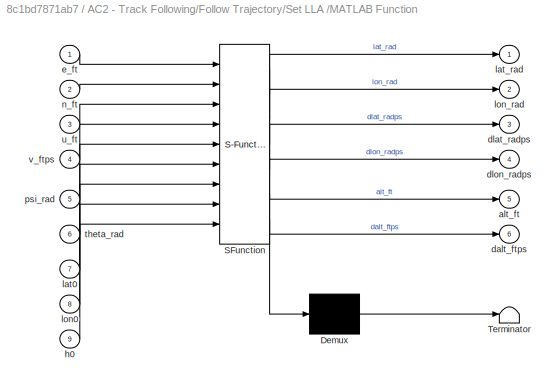
BLOCK [SubSystem] AC2 - Track Following/Follow Trajectory/Set LLA /MATLAB Function
  ErrorFcn = Stateflow.Translate.translate
  PermitHierarchicalResolution = ExplicitOnly
  Ports = [9, 6]
  RequestExecContextInheritance = off
  SFBlockType = MATLAB Function
  TreatAsAtomicUnit = on
BLOCK [Demux] AC2 - Track Following/Follow Trajectory/Set LLA /MATLAB Function/ Demux 
  Outputs = 1
  Ports = [1, 1]
BLOCK [S-Function] AC2 - Track Following/Follow Trajectory/Set LLA /MATLAB Function/ SFunction 
  EnableBusSupport = off
  FunctionName = sf_sfun
  PortCounts = [9 7]
  Ports = [9, 7]
  SFcnIsStateOwnerBlock = off
  SFunctionDeploymentMode = off
  Tag = Stateflow S-Function 19
BLOCK [Terminator] AC2 - Track Following/Follow Trajectory/Set LLA /MATLAB Function/ Terminator 
BLOCK [Outport] AC2 - Track Following/Follow Trajectory/Set LLA /MATLAB Function/alt_ft
  IconDisplay = Port number
  Port = 5
  VectorParamsAs1DForOutWhenUnconnected = off
BLOCK [Outport] AC2 - Track Following/Follow Trajectory/Set LLA /MATLAB Function/dalt_ftps
  IconDisplay = Port number
  Port = 6
  VectorParamsAs1DForOutWhenUnconnected = off
BLOCK [Outport] AC2 - Track Following/Follow Trajectory/Set LLA /MATLAB Function/dlat_radps
  IconDisplay = Port number
  Port = 3
  VectorParamsAs1DForOutWhenUnconnected = off
BLOCK [Outport] AC2 - Track Following/Follow Trajectory/Set LLA /MATLAB Function/dlon_radps
  IconDisplay = Port number
  Port = 4
  VectorParamsAs1DForOutWhenUnconnected = off
BLOCK [Inport] AC2 - Track Following/Follow Trajectory/Set LLA /MATLAB Function/e_ft
  IconDisplay = Port number
BLOCK [Inport] AC2 - Track Following/Follow Trajectory/Set LLA /MATLAB Function/h0
  IconDisplay = Port number
  Port = 9
BLOCK [Inport] AC2 - Track Following/Follow Trajectory/Set LLA /MATLAB Function/lat0
  IconDisplay = Port number
  Port = 7
BLOCK [Outport] AC2 - Track Following/Follow Trajectory/Set LLA /MATLAB Function/lat_rad
  IconDisplay = Port number
  VectorParamsAs1DForOutWhenUnconnected = off
BLOCK [Inport] AC2 - Track Following/Follow Trajectory/Set LLA /MATLAB Function/lon0
  IconDisplay = Port number
  Port = 8
BLOCK [Outport] AC2 - Track Following/Follow Trajectory/Set LLA /MATLAB Function/lon_rad
  IconDisplay = Port number
  Port = 2
  VectorParamsAs1DForOutWhenUnconnected = off
BLOCK [Inport] AC2 - Track Following/Follow Trajectory/Set LLA /MATLAB Function/n_ft
  IconDisplay = Port number
  Port = 2
BLOCK [Inport] AC2 - Track Following/Follow Trajectory/Set LLA /MATLAB Function/psi_rad
  IconDisplay = Port number
  Port = 5
BLOCK [Inport] AC2 - Track Following/Follow Trajectory/Set LLA /MATLAB Function/theta_rad
  IconDisplay = Port number
  Port = 6
BLOCK [Inport] AC2 - Track Following/Follow Trajectory/Set LLA /MATLAB Function/u_ft
  IconDisplay = Port number
  Port = 3
BLOCK [Inport] AC2 - Track Following/Follow Trajectory/Set LLA /MATLAB Function/v_ftps
  IconDisplay = Port number
  Port = 4
BLOCK [Inport] AC2 - Track Following/Follow Trajectory/Set LLA /State In
  IconDisplay = Port number
BLOCK [Outport] AC2 - Track Following/Follow Trajectory/Set LLA /State Out
  IconDisplay = Port number
  VectorParamsAs1DForOutWhenUnconnected = off
BLOCK [SubSystem] AC2 - Track Following/Follow Trajectory/Set State
  Ports = [1, 1]
  RequestExecContextInheritance = off
BLOCK [BusAssignment] AC2 - Track Following/Follow Trajectory/Set State/Bus Assignment
  AssignedSignals = v_ftps,n_ft,e_ft,h_ft,psi_rad,theta_rad,phi_rad,dv_ftps2,dh_ftps,ddh_ftps2
  Ports = [11, 1]
BLOCK [Demux] AC2 - Track Following/Follow Trajectory/Set State/Demux
  DisplayOption = bar
  Outputs = 10
  Ports = [1, 10]
BLOCK [SubSystem] AC2 - Track Following/Follow Trajectory/Set State/Null AircraftState
  Ports = [0, 1]
  RequestExecContextInheritance = off
BLOCK [BusCreator] AC2 - Track Following/Follow Trajectory/Set State/Null AircraftState/Bus Creator
  DisplayOption = bar
  InheritFromInputs = on
  Inputs = 'latLonAltState','v_ftps','n_ft','e_ft','h_ft','psi_rad','theta_rad','phi_rad','p_radps','q_radps','r_radps','dv_ftps2','dh_ftps','ddh_ftps2'
  OutDataTypeStr = Bus: AircraftState
  Ports = [14, 1]
BLOCK [Constant] AC2 - Track Following/Follow Trajectory/Set State/Null AircraftState/Constant
  Value = 0
BLOCK [Constant] AC2 - Track Following/Follow Trajectory/Set State/Null AircraftState/Constant1
  Value = 0
BLOCK [Constant] AC2 - Track Following/Follow Trajectory/Set State/Null AircraftState/Constant10
  Value = 0
BLOCK [Constant] AC2 - Track Following/Follow Trajectory/Set State/Null AircraftState/Constant11
  Value = 0
BLOCK [Constant] AC2 - Track Following/Follow Trajectory/Set State/Null AircraftState/Constant12
  Value = 0
BLOCK [Constant] AC2 - Track Following/Follow Trajectory/Set State/Null AircraftState/Constant2
  Value = 0
BLOCK [Constant] AC2 - Track Following/Follow Trajectory/Set State/Null AircraftState/Constant3
  Value = 0
BLOCK [Constant] AC2 - Track Following/Follow Trajectory/Set State/Null AircraftState/Constant4
  Value = 0
BLOCK [Constant] AC2 - Track Following/Follow Trajectory/Set State/Null AircraftState/Constant5
  Value = 0
BLOCK [Constant] AC2 - Track Following/Follow Trajectory/Set State/Null AircraftState/Constant6
  Value = 0
BLOCK [Constant] AC2 - Track Following/Follow Trajectory/Set State/Null AircraftState/Constant7
  Value = 0
BLOCK [Constant] AC2 - Track Following/Follow Trajectory/Set State/Null AircraftState/Constant8
  Value = 0
BLOCK [Constant] AC2 - Track Following/Follow Trajectory/Set State/Null AircraftState/Constant9
  Value = 0
BLOCK [SubSystem] AC2 - Track Following/Follow Trajectory/Set State/Null AircraftState/Null LatLonAltMeasurement
  Ports = [0, 1]
  RequestExecContextInheritance = off
BLOCK [BusCreator] AC2 - Track Following/Follow Trajectory/Set State/Null AircraftState/Null LatLonAltMeasurement/Bus Creator
  DisplayOption = bar
  InheritFromInputs = on
  Inputs = 'lat_rad','lon_rad','dlat_radps','dlon_radps','alt_ft','dalt_ftps'
  OutDataTypeStr = Bus: LatLonAltMeasurement
  Ports = [6, 1]
BLOCK [Constant] AC2 - Track Following/Follow Trajectory/Set State/Null AircraftState/Null LatLonAltMeasurement/Constant
  Value = 0
BLOCK [Constant] AC2 - Track Following/Follow Trajectory/Set State/Null AircraftState/Null LatLonAltMeasurement/Constant1
  Value = 0
BLOCK [Constant] AC2 - Track Following/Follow Trajectory/Set State/Null AircraftState/Null LatLonAltMeasurement/Constant2
  Value = 0
BLOCK [Constant] AC2 - Track Following/Follow Trajectory/Set State/Null AircraftState/Null LatLonAltMeasurement/Constant3
  Value = 0
BLOCK [Constant] AC2 - Track Following/Follow Trajectory/Set State/Null AircraftState/Null LatLonAltMeasurement/Constant4
  Value = 0
BLOCK [Constant] AC2 - Track Following/Follow Trajectory/Set State/Null AircraftState/Null LatLonAltMeasurement/Constant5
  Value = 0
BLOCK [Outport] AC2 - Track Following/Follow Trajectory/Set State/Null AircraftState/Null LatLonAltMeasurement/LLA
  IconDisplay = Port number
  VectorParamsAs1DForOutWhenUnconnected = off
BLOCK [Outport] AC2 - Track Following/Follow Trajectory/Set State/Null AircraftState/State
  IconDisplay = Port number
  VectorParamsAs1DForOutWhenUnconnected = off
BLOCK [Outport] AC2 - Track Following/Follow Trajectory/Set State/State
  IconDisplay = Port number
  VectorParamsAs1DForOutWhenUnconnected = off
BLOCK [Inport] AC2 - Track Following/Follow Trajectory/Set State/x
  IconDisplay = Port number
BLOCK [SignalConversion] AC2 - Track Following/Follow Trajectory/Signal Conversion
  OverrideOpt = off
BLOCK [SignalConversion] AC2 - Track Following/Follow Trajectory/Signal Conversion1
  OverrideOpt = off
BLOCK [Outport] AC2 - Track Following/Follow Trajectory/State
  IconDisplay = Port number
  VectorParamsAs1DForOutWhenUnconnected = off
BLOCK [Outport] AC2 - Track Following/Follow Trajectory/State Rate
  IconDisplay = Port number
  Port = 2
  VectorParamsAs1DForOutWhenUnconnected = off
BLOCK [SubSystem] AC2 - Track Following/Performance_constraints
  Ports = [0, 1]
  RequestExecContextInheritance = off
BLOCK [Outport] AC2 - Track Following/Performance_constraints/AircraftConstraints
  IconDisplay = Port number
  OutDataTypeStr = Bus: AircraftConstraints
  VectorParamsAs1DForOutWhenUnconnected = off
BLOCK [BusCreator] AC2 - Track Following/Performance_constraints/Bus Creator
  DisplayOption = bar
  InheritFromInputs = on
  Inputs = 16
  Ports = [16, 1]
BLOCK [Constant] AC2 - Track Following/Performance_constraints/Constant
  Value = v_ftps_max
BLOCK [Constant] AC2 - Track Following/Performance_constraints/Constant1
  Value = v_ftps_min
BLOCK [Constant] AC2 - Track Following/Performance_constraints/Constant10 2x1
  Value = pNUM
BLOCK [Constant] AC2 - Track Following/Performance_constraints/Constant11
  Value = pDEN
BLOCK [Constant] AC2 - Track Following/Performance_constraints/Constant12 2x1
  Value = hNUM
BLOCK [Constant] AC2 - Track Following/Performance_constraints/Constant13
  Value = hDEN
BLOCK [Constant] AC2 - Track Following/Performance_constraints/Constant14 2x1
  Value = rNUM
BLOCK [Constant] AC2 - Track Following/Performance_constraints/Constant15
  Value = rDEN
BLOCK [Constant] AC2 - Track Following/Performance_constraints/Constant2
  Value = dv_ftpss_max
BLOCK [Constant] AC2 - Track Following/Performance_constraints/Constant3
  Value = dv_ftpss_min
BLOCK [Constant] AC2 - Track Following/Performance_constraints/Constant4
  Value = dh_ftps_max
BLOCK [Constant] AC2 - Track Following/Performance_constraints/Constant5
  Value = dh_ftps_min
BLOCK [Constant] AC2 - Track Following/Performance_constraints/Constant6
  Value = q_radps_max
BLOCK [Constant] AC2 - Track Following/Performance_constraints/Constant7
  Value = phi_rad_max
BLOCK [Constant] AC2 - Track Following/Performance_constraints/Constant8
  Value = dphi_radps_max
BLOCK [Constant] AC2 - Track Following/Performance_constraints/Constant9
  Value = r_radps_max
BLOCK [RateTransition] AC2 - Track Following/Rate Transition
  OutPortSampleTime = 0.1
BLOCK [Outport] AC2 - Track Following/StateRate
  IconDisplay = Port number
  OutDataTypeStr = Bus: AircraftStateRate
  Port = 2
  VectorParamsAs1DForOutWhenUnconnected = off
BLOCK [Terminator] Terminator1
BLOCK [Terminator] Terminator3
BLOCK [Terminator] Terminator5
BLOCK [Terminator] Terminator6
BLOCK [ToWorkspace] To Workspace
  FixptAsFi = on
  MaxDataPoints = inf
  Ports = [1]
  SampleTime = -1
  SaveFormat = Timeseries
  VariableName = aircraftEstimate
BLOCK [ToWorkspace] To Workspace1
  FixptAsFi = on
  MaxDataPoints = inf
  Ports = [1]
  SampleTime = -1
  SaveFormat = Timeseries
  VariableName = aircraftState
BLOCK [ToWorkspace] To Workspace2
  FixptAsFi = on
  MaxDataPoints = inf
  Ports = [1]
  SampleTime = -1
  SaveFormat = Timeseries
  VariableName = stateRate
BLOCK [Reference] Visual Aq Surveillance  REF=VisualAqSurveillanceBlock_devAlt/Visual Aq Surveillance
  Description = Documentation for Perfect Observation Block                                                                                                                                                                                                                                                                                                                                                                     ...<+6169ch>
  Ports = [4, 2]
  SourceBlock = VisualAqSurveillanceBlock_devAlt/Visual Aq Surveillance
LINE AC1 - Track Following/Follow Trajectory:1 -> AC1 - Track Following/AircraftState:1
LINE AC1 - Track Following/Follow Trajectory:2 -> AC1 - Track Following/Rate Transition:1
LINE AC1 - Track Following/Performance_constraints/Bus Creator:1 -> AC1 - Track Following/Performance_constraints/AircraftConstraints:1
LINE AC1 - Track Following/Performance_constraints/Constant10 2x1:1 -> AC1 - Track Following/Performance_constraints/Bus Creator:11
LINE AC1 - Track Following/Performance_constraints/Constant11:1 -> AC1 - Track Following/Performance_constraints/Bus Creator:12
LINE AC1 - Track Following/Performance_constraints/Constant12 2x1:1 -> AC1 - Track Following/Performance_constraints/Bus Creator:13
LINE AC1 - Track Following/Performance_constraints/Constant13:1 -> AC1 - Track Following/Performance_constraints/Bus Creator:14
LINE AC1 - Track Following/Performance_constraints/Constant14 2x1:1 -> AC1 - Track Following/Performance_constraints/Bus Creator:15
LINE AC1 - Track Following/Performance_constraints/Constant15:1 -> AC1 - Track Following/Performance_constraints/Bus Creator:16
LINE AC1 - Track Following/Performance_constraints/Constant1:1 -> AC1 - Track Following/Performance_constraints/Bus Creator:2
LINE AC1 - Track Following/Performance_constraints/Constant2:1 -> AC1 - Track Following/Performance_constraints/Bus Creator:3
LINE AC1 - Track Following/Performance_constraints/Constant3:1 -> AC1 - Track Following/Performance_constraints/Bus Creator:4
LINE AC1 - Track Following/Performance_constraints/Constant4:1 -> AC1 - Track Following/Performance_constraints/Bus Creator:5
LINE AC1 - Track Following/Performance_constraints/Constant5:1 -> AC1 - Track Following/Performance_constraints/Bus Creator:6
LINE AC1 - Track Following/Performance_constraints/Constant6:1 -> AC1 - Track Following/Performance_constraints/Bus Creator:7
LINE AC1 - Track Following/Performance_constraints/Constant7:1 -> AC1 - Track Following/Performance_constraints/Bus Creator:8
LINE AC1 - Track Following/Performance_constraints/Constant8:1 -> AC1 - Track Following/Performance_constraints/Bus Creator:9
LINE AC1 - Track Following/Performance_constraints/Constant9:1 -> AC1 - Track Following/Performance_constraints/Bus Creator:10
LINE AC1 - Track Following/Performance_constraints/Constant:1 -> AC1 - Track Following/Performance_constraints/Bus Creator:1
NET AC1 - Track Following/Performance_constraints:1 -> AC1 - Track Following/AircraftConstraints:1, AC1 - Track Following/Follow Trajectory:1
LINE AC1 - Track Following/Rate Transition:1 -> AC1 - Track Following/StateRate:1
NET AC1 - Track Following:1 -> To Workspace1:1, Visual Aq Surveillance:3
NET AC1 - Track Following:2 -> To Workspace2:1, Visual Aq Surveillance:4
LINE AC1 - Track Following:3 -> Terminator6:1
LINE AC2 - Track Following/Follow Trajectory:1 -> AC2 - Track Following/AircraftState:1
LINE AC2 - Track Following/Follow Trajectory:2 -> AC2 - Track Following/Rate Transition:1
LINE AC2 - Track Following/Performance_constraints/Bus Creator:1 -> AC2 - Track Following/Performance_constraints/AircraftConstraints:1
LINE AC2 - Track Following/Performance_constraints/Constant10 2x1:1 -> AC2 - Track Following/Performance_constraints/Bus Creator:11
LINE AC2 - Track Following/Performance_constraints/Constant11:1 -> AC2 - Track Following/Performance_constraints/Bus Creator:12
LINE AC2 - Track Following/Performance_constraints/Constant12 2x1:1 -> AC2 - Track Following/Performance_constraints/Bus Creator:13
LINE AC2 - Track Following/Performance_constraints/Constant13:1 -> AC2 - Track Following/Performance_constraints/Bus Creator:14
LINE AC2 - Track Following/Performance_constraints/Constant14 2x1:1 -> AC2 - Track Following/Performance_constraints/Bus Creator:15
LINE AC2 - Track Following/Performance_constraints/Constant15:1 -> AC2 - Track Following/Performance_constraints/Bus Creator:16
LINE AC2 - Track Following/Performance_constraints/Constant1:1 -> AC2 - Track Following/Performance_constraints/Bus Creator:2
LINE AC2 - Track Following/Performance_constraints/Constant2:1 -> AC2 - Track Following/Performance_constraints/Bus Creator:3
LINE AC2 - Track Following/Performance_constraints/Constant3:1 -> AC2 - Track Following/Performance_constraints/Bus Creator:4
LINE AC2 - Track Following/Performance_constraints/Constant4:1 -> AC2 - Track Following/Performance_constraints/Bus Creator:5
LINE AC2 - Track Following/Performance_constraints/Constant5:1 -> AC2 - Track Following/Performance_constraints/Bus Creator:6
LINE AC2 - Track Following/Performance_constraints/Constant6:1 -> AC2 - Track Following/Performance_constraints/Bus Creator:7
LINE AC2 - Track Following/Performance_constraints/Constant7:1 -> AC2 - Track Following/Performance_constraints/Bus Creator:8
LINE AC2 - Track Following/Performance_constraints/Constant8:1 -> AC2 - Track Following/Performance_constraints/Bus Creator:9
LINE AC2 - Track Following/Performance_constraints/Constant9:1 -> AC2 - Track Following/Performance_constraints/Bus Creator:10
LINE AC2 - Track Following/Performance_constraints/Constant:1 -> AC2 - Track Following/Performance_constraints/Bus Creator:1
NET AC2 - Track Following/Performance_constraints:1 -> AC2 - Track Following/AircraftConstraints:1, AC2 - Track Following/Follow Trajectory:1
LINE AC2 - Track Following/Rate Transition:1 -> AC2 - Track Following/StateRate:1
LINE AC2 - Track Following:1 -> Visual Aq Surveillance:1
LINE AC2 - Track Following:2 -> Visual Aq Surveillance:2
LINE AC2 - Track Following:3 -> Terminator5:1
LINE Visual Aq Surveillance:1 -> To Workspace:1
LINE Visual Aq Surveillance:2 -> Terminator1:1
note: NET lines group one-source signal fan-out (src -> all destinations, sorted); 1:1 wires keep LINE
CHART AC1 - Track Following/Follow Trajectory/Set LLA /MATLAB Function states=1 transitions=1
  STATE_LABEL 'eML_blk_kernel()'
  STATE_LABEL 'SCRIPT:\nfunction [lat_rad,lon_rad,dlat_radps,dlon_radps,alt_ft,dalt_ftps] = convertToLLA(e_ft,n_ft,u_ft,v_ftps,psi_rad,theta_rad,lat0,lon0,h0)\n%#codegen\n\n% WGS-84 ellipsoid constants\na = 2.09256*10^7;          %Semi-major axis (meters)\nf = 1.0/298.257223563;  %Flattening\necc_sq = f*(2.0-f);        %Eccentricity^2\n\n\n% Ellipsoidal "radius"\ner = a./sqrt(1-ecc_sq.*sin(lat0).^2);\n\n\n% ECEF coordinates\nx...<+2167ch>'
CHART AC2 - Track Following/Follow Trajectory/Set LLA /MATLAB Function states=1 transitions=1
  STATE_LABEL 'eML_blk_kernel()'
  STATE_LABEL 'SCRIPT:\nfunction [lat_rad,lon_rad,dlat_radps,dlon_radps,alt_ft,dalt_ftps] = convertToLLA(e_ft,n_ft,u_ft,v_ftps,psi_rad,theta_rad,lat0,lon0,h0)\n%#codegen\n\n% WGS-84 ellipsoid constants\na = 2.09256*10^7;          %Semi-major axis (meters)\nf = 1.0/298.257223563;  %Flattening\necc_sq = f*(2.0-f);        %Eccentricity^2\n\n\n% Ellipsoidal "radius"\ner = a./sqrt(1-ecc_sq.*sin(lat0).^2);\n\n\n% ECEF coordinates\nx...<+2167ch>'
